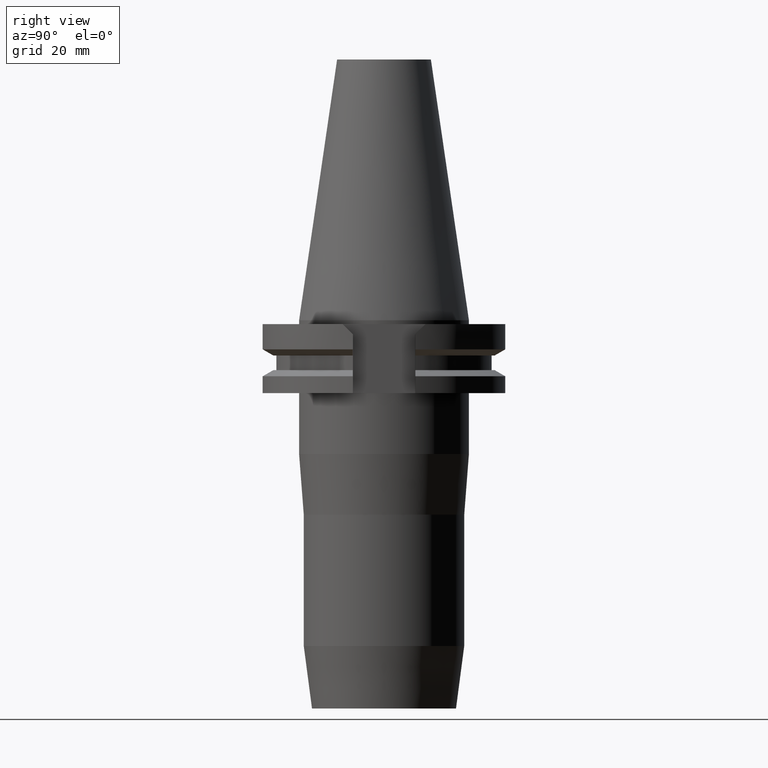
[diagram: clean part render]
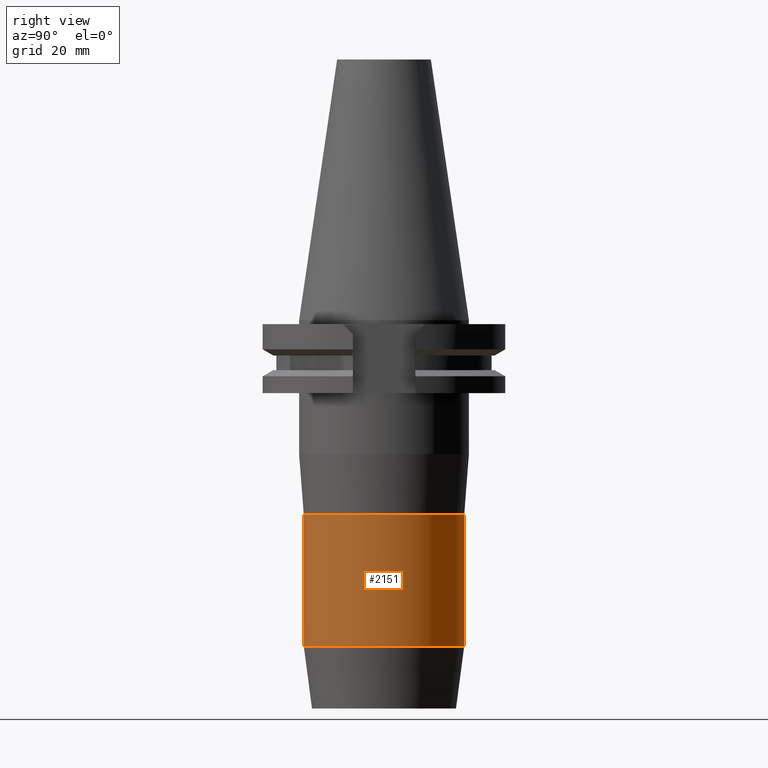
[diagram: same view with one face highlighted and labeled with its STEP entity id]
A machine part, right view. The second image highlights one B-rep face of the part: STEP entity #2151.
In plain terms, the highlighted cylindrical surface (partial cylindrical patch) has radius 21 mm, axis along (0, 0, -1).
Its self-contained STEP definition (entity closure, byte-faithful):
#869=CARTESIAN_POINT('',(0.E0,0.E0,-5.087682396309E1));
#870=DIRECTION('',(0.E0,0.E0,-1.E0));
#871=DIRECTION('',(0.E0,1.E0,0.E0));
#872=AXIS2_PLACEMENT_3D('',#869,#870,#871);
#908=DIRECTION('',(0.E0,-1.923285299522E-14,-1.E0));
#909=VECTOR('',#908,3.435812380104E1);
#910=CARTESIAN_POINT('',(0.E0,-2.1E1,-5.087682396309E1));
#911=LINE('',#910,#909);
#915=DIRECTION('',(0.E0,1.933625543068E-14,-1.E0));
#916=VECTOR('',#915,3.435812380104E1);
#917=CARTESIAN_POINT('',(0.E0,2.1E1,-5.087682396309E1));
#918=LINE('',#917,#916);
#929=CARTESIAN_POINT('',(0.E0,0.E0,-8.523494776413E1));
#930=DIRECTION('',(0.E0,0.E0,1.E0));
#931=DIRECTION('',(0.E0,-1.E0,0.E0));
#932=AXIS2_PLACEMENT_3D('',#929,#930,#931);
#1318=CARTESIAN_POINT('',(0.E0,2.1E1,-8.523494776413E1));
#1319=VERTEX_POINT('',#1318);
#1320=CARTESIAN_POINT('',(0.E0,-2.1E1,-8.523494776413E1));
#1321=VERTEX_POINT('',#1320);
#1322=CARTESIAN_POINT('',(0.E0,2.1E1,-5.087682396309E1));
#1323=VERTEX_POINT('',#1322);
#1324=CARTESIAN_POINT('',(0.E0,-2.1E1,-5.087682396309E1));
#1325=VERTEX_POINT('',#1324);
#2139=CARTESIAN_POINT('',(0.E0,2.164471368983E-14,7.67425E1));
#2140=DIRECTION('',(0.E0,0.E0,-1.E0));
#2141=DIRECTION('',(0.E0,-1.E0,0.E0));
#2142=AXIS2_PLACEMENT_3D('',#2139,#2140,#2141);
#2143=CYLINDRICAL_SURFACE('',#2142,2.1E1);
#2144=ORIENTED_EDGE('',*,*,#2129,.T.);
#2146=ORIENTED_EDGE('',*,*,#2145,.F.);
#2147=ORIENTED_EDGE('',*,*,#2132,.F.);
#2148=ORIENTED_EDGE('',*,*,#2103,.F.);
#2149=EDGE_LOOP('',(#2144,#2146,#2147,#2148));
#2150=FACE_OUTER_BOUND('',#2149,.F.);
#873=CIRCLE('',#872,2.1E1);
#933=CIRCLE('',#932,2.1E1);
#2103=EDGE_CURVE('',#1323,#1325,#873,.T.);
#2129=EDGE_CURVE('',#1323,#1319,#918,.T.);
#2132=EDGE_CURVE('',#1325,#1321,#911,.T.);
#2145=EDGE_CURVE('',#1321,#1319,#933,.T.);
#2151=ADVANCED_FACE('',(#2150),#2143,.T.);